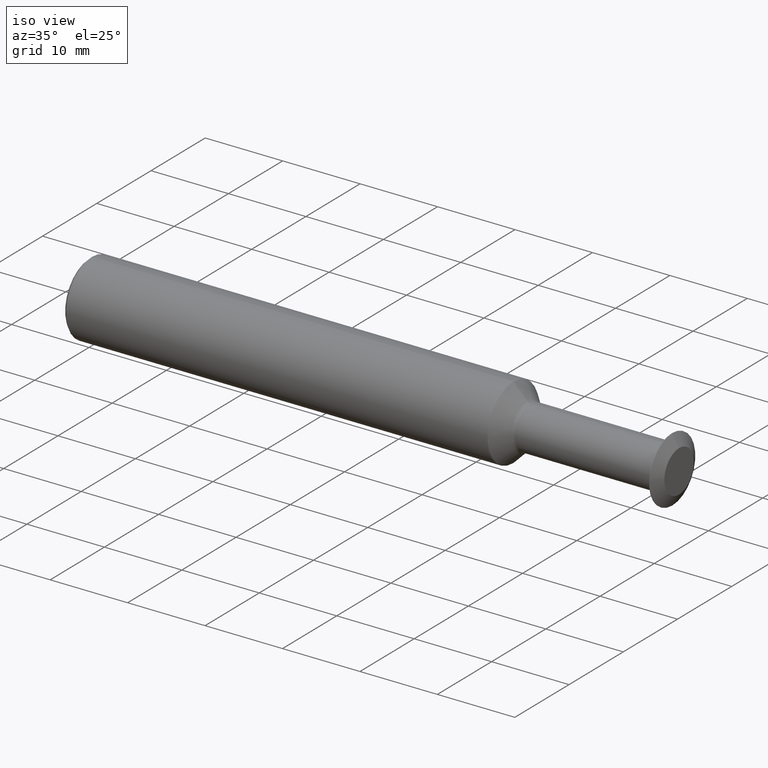
[diagram: clean part render]
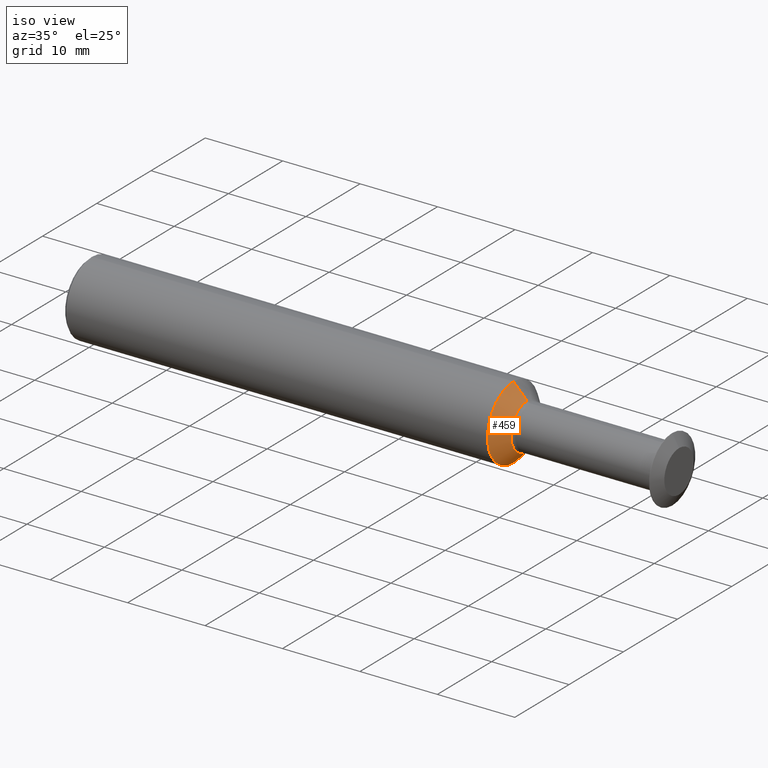
[diagram: same view with one face highlighted and labeled with its STEP entity id]
A machine part, iso view. The second image highlights one B-rep face of the part: STEP entity #459.
In plain terms, the highlighted conical surface has half-angle 45 deg.
Its self-contained STEP definition (entity closure, byte-faithful):
#46 = VERTEX_POINT ( 'NONE', #334 ) ;
#47 = EDGE_CURVE ( 'NONE', #426, #139, #82, .T. ) ;
#60 = DIRECTION ( 'NONE',  ( -0.7071067811865483499, 0.0000000000000000000, 0.7071067811865465735 ) ) ;
#73 = EDGE_CURVE ( 'NONE', #428, #46, #442, .T. ) ;
#79 = CARTESIAN_POINT ( 'NONE',  ( 2.227569642146536300, 0.0000000000000000000, 0.1173223304703358144 ) ) ;
#82 = LINE ( 'NONE', #358, #494 ) ;
#90 = ORIENTED_EDGE ( 'NONE', *, *, #91, .T. ) ;
#91 = EDGE_CURVE ( 'NONE', #428, #426, #318, .T. ) ;
#94 = EDGE_LOOP ( 'NONE', ( #141, #90, #495, #460 ) ) ;
#96 = CARTESIAN_POINT ( 'NONE',  ( 2.227569642146536300, 0.0000000000000000000, 0.0000000000000000000 ) ) ;
#107 = DIRECTION ( 'NONE',  ( 0.0000000000000000000, 0.0000000000000000000, 1.000000000000000000 ) ) ;
#113 = DIRECTION ( 'NONE',  ( -1.000000000000000000, -0.0000000000000000000, -0.0000000000000000000 ) ) ;
#134 = DIRECTION ( 'NONE',  ( 0.0000000000000000000, 0.0000000000000000000, 1.000000000000000000 ) ) ;
#137 = DIRECTION ( 'NONE',  ( -1.000000000000000000, -0.0000000000000000000, -0.0000000000000000000 ) ) ;
#139 = VERTEX_POINT ( 'NONE', #217 ) ;
#141 = ORIENTED_EDGE ( 'NONE', *, *, #73, .F. ) ;
#187 = EDGE_CURVE ( 'NONE', #46, #139, #288, .T. ) ;
#192 = DIRECTION ( 'NONE',  ( 0.0000000000000000000, 0.0000000000000000000, 1.000000000000000000 ) ) ;
#215 = AXIS2_PLACEMENT_3D ( 'NONE', #96, #137, #134 ) ;
#217 = CARTESIAN_POINT ( 'NONE',  ( 2.157541972616871639, 0.0000000000000000000, 0.1873499999999999888 ) ) ;
#242 = DIRECTION ( 'NONE',  ( -1.000000000000000000, -0.0000000000000000000, -0.0000000000000000000 ) ) ;
#252 = VECTOR ( 'NONE', #264, 39.37007874015748854 ) ;
#264 = DIRECTION ( 'NONE',  ( -0.7071067811865483499, 8.659560562354922997E-17, -0.7071067811865465735 ) ) ;
#282 = CARTESIAN_POINT ( 'NONE',  ( 2.227569642146536300, 0.0000000000000000000, 0.0000000000000000000 ) ) ;
#288 = CIRCLE ( 'NONE', #293, 0.1873499999999999888 ) ;
#293 = AXIS2_PLACEMENT_3D ( 'NONE', #471, #242, #107 ) ;
#305 = FACE_OUTER_BOUND ( 'NONE', #94, .T. ) ;
#306 = CONICAL_SURFACE ( 'NONE', #402, 0.1173223304703358144, 0.7853981633974470578 ) ;
#318 = CIRCLE ( 'NONE', #215, 0.1173223304703358144 ) ;
#334 = CARTESIAN_POINT ( 'NONE',  ( 2.157541972616871639, 2.294375778202565714E-17, -0.1873499999999999888 ) ) ;
#358 = CARTESIAN_POINT ( 'NONE',  ( 2.227569642146536300, 0.0000000000000000000, 0.1173223304703358144 ) ) ;
#401 = CARTESIAN_POINT ( 'NONE',  ( 2.227569642146536300, 1.436784164790047629E-17, -0.1173223304703358144 ) ) ;
#402 = AXIS2_PLACEMENT_3D ( 'NONE', #282, #113, #192 ) ;
#426 = VERTEX_POINT ( 'NONE', #79 ) ;
#428 = VERTEX_POINT ( 'NONE', #430 ) ;
#430 = CARTESIAN_POINT ( 'NONE',  ( 2.227569642146536300, 1.436784164790047629E-17, -0.1173223304703358144 ) ) ;
#442 = LINE ( 'NONE', #401, #252 ) ;
#459 = ADVANCED_FACE ( 'NONE', ( #305 ), #306, .T. ) ;
#460 = ORIENTED_EDGE ( 'NONE', *, *, #187, .F. ) ;
#471 = CARTESIAN_POINT ( 'NONE',  ( 2.157541972616871639, 0.0000000000000000000, 0.0000000000000000000 ) ) ;
#494 = VECTOR ( 'NONE', #60, 39.37007874015748854 ) ;
#495 = ORIENTED_EDGE ( 'NONE', *, *, #47, .T. ) ;